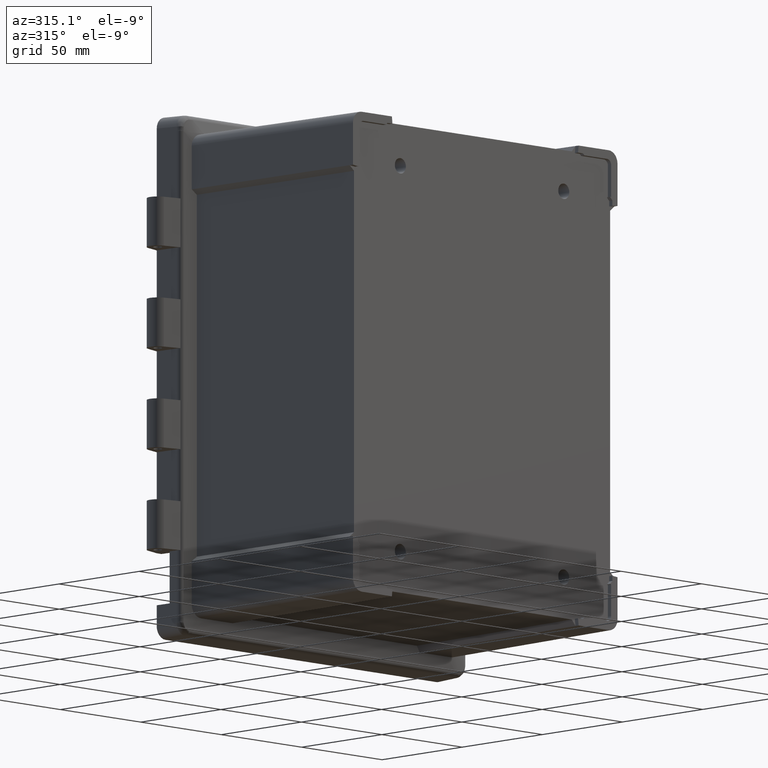
[diagram: clean part render]
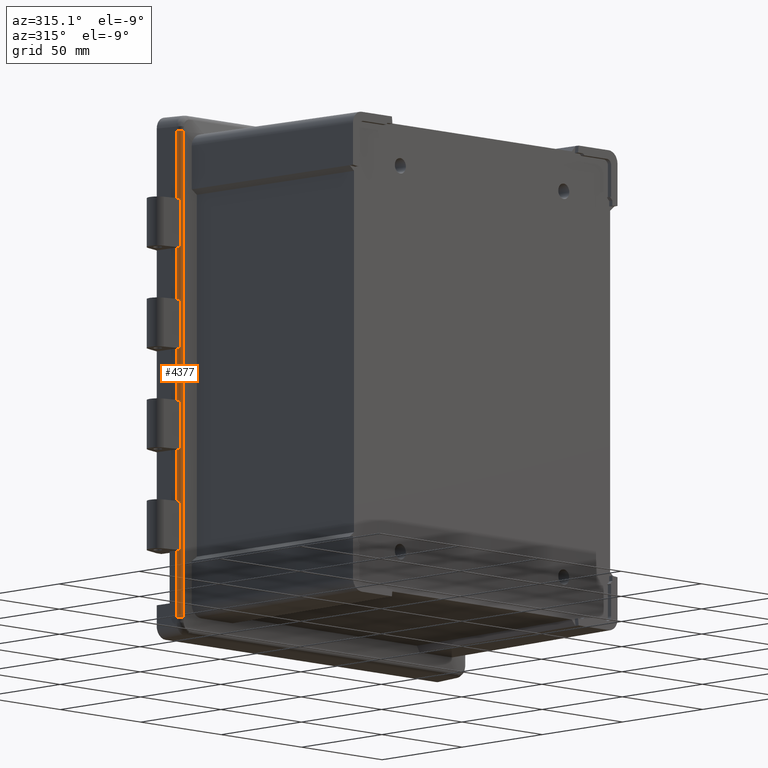
[diagram: same view with one face highlighted and labeled with its STEP entity id]
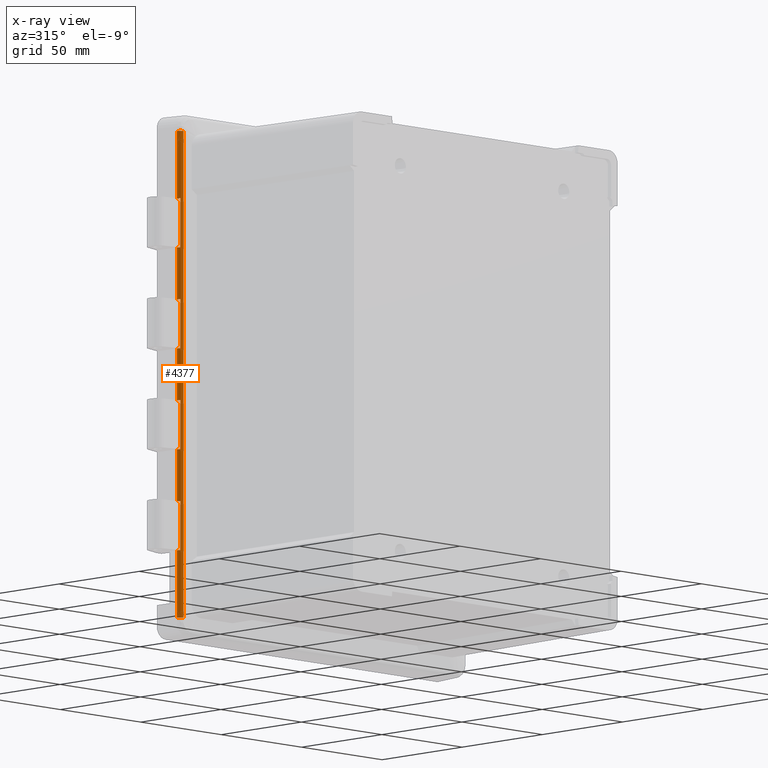
[diagram: x-ray of the same camera — body ghosted, the highlighted face saturated]
A machine part, auxiliary view. The second image highlights one B-rep face of the part: STEP entity #4377.
The next image is the same camera in x-ray: the body ghosted, the highlighted face saturated — about 0% of this face is hidden behind the body in this view.
In plain terms, the highlighted cylindrical surface (edge-blend (fillet) strip) has radius 2.5 mm, axis along (0, 0, -1).
Its self-contained STEP definition (entity closure, byte-faithful):
#23 = ORIENTED_EDGE ( 'NONE', *, *, #4641, .F. ) ;
#60 = CARTESIAN_POINT ( 'NONE',  ( -88.51205351544631100, -13.71086595240216300, -56.59999999999998000 ) ) ;
#186 = AXIS2_PLACEMENT_3D ( 'NONE', #8789, #15572, #783 ) ;
#410 = VECTOR ( 'NONE', #6928, 1000.000000000000000 ) ;
#447 = ORIENTED_EDGE ( 'NONE', *, *, #12240, .F. ) ;
#473 = CARTESIAN_POINT ( 'NONE',  ( -88.51205351544631100, -13.71086595240216300, 115.9071434627127800 ) ) ;
#592 = CARTESIAN_POINT ( 'NONE',  ( -88.51205351544631100, -13.71086595240216300, -33.39999999999998400 ) ) ;
#685 = CARTESIAN_POINT ( 'NONE',  ( -86.72683258303006000, -11.96072703721204200, -33.40000000000001300 ) ) ;
#754 = VECTOR ( 'NONE', #12533, 1000.000000000000000 ) ;
#762 = ORIENTED_EDGE ( 'NONE', *, *, #3729, .F. ) ;
#783 = DIRECTION ( 'NONE',  ( -1.000000000000000000, 0.0000000000000000000, 0.0000000000000000000 ) ) ;
#913 = DIRECTION ( 'NONE',  ( 0.0000000000000000000, 0.0000000000000000000, 1.000000000000000000 ) ) ;
#990 = DIRECTION ( 'NONE',  ( 1.000000000000000000, 0.0000000000000000000, 0.0000000000000000000 ) ) ;
#995 = CYLINDRICAL_SURFACE ( 'NONE', #6089, 2.500000000000002200 ) ;
#1063 = AXIS2_PLACEMENT_3D ( 'NONE', #5134, #13110, #990 ) ;
#1221 = CARTESIAN_POINT ( 'NONE',  ( -87.24661181007446900, -14.40609603904655200, -108.4869520034038700 ) ) ;
#1378 = CIRCLE ( 'NONE', #10074, 2.500000000000002200 ) ;
#1380 = EDGE_CURVE ( 'NONE', #2255, #8680, #9791, .T. ) ;
#1387 = DIRECTION ( 'NONE',  ( 0.0000000000000000000, 0.0000000000000000000, 1.000000000000000000 ) ) ;
#1432 = LINE ( 'NONE', #5155, #16030 ) ;
#1901 = EDGE_CURVE ( 'NONE', #12692, #2255, #17379, .T. ) ;
#1999 = AXIS2_PLACEMENT_3D ( 'NONE', #5691, #9958, #4479 ) ;
#2044 = VECTOR ( 'NONE', #13022, 1000.000000000000000 ) ;
#2075 = ORIENTED_EDGE ( 'NONE', *, *, #4059, .T. ) ;
#2225 = CARTESIAN_POINT ( 'NONE',  ( -89.22530965057779900, -12.04797577896829400, -33.39999999999999900 ) ) ;
#2255 = VERTEX_POINT ( 'NONE', #11455 ) ;
#2323 = DIRECTION ( 'NONE',  ( 0.0000000000000000000, 0.0000000000000000000, 1.000000000000000000 ) ) ;
#2378 = CIRCLE ( 'NONE', #15553, 2.500000000000002200 ) ;
#2475 = LINE ( 'NONE', #4399, #10281 ) ;
#2488 = CARTESIAN_POINT ( 'NONE',  ( -89.22530965057779900, -12.04797577896829500, 11.60000000000000000 ) ) ;
#2548 = ORIENTED_EDGE ( 'NONE', *, *, #9465, .F. ) ;
#2620 = CARTESIAN_POINT ( 'NONE',  ( -89.22530965057779900, -12.04797577896829400, -56.59999999999999400 ) ) ;
#2676 = EDGE_LOOP ( 'NONE', ( #23, #8838, #16496, #11606, #6880, #2075, #10024, #447, #7588, #16683, #13264, #3673, #762, #10352, #11815, #6703, #2548, #16841, #8551, #17434 ) ) ;
#3195 = EDGE_CURVE ( 'NONE', #6162, #13288, #11205, .T. ) ;
#3198 = DIRECTION ( 'NONE',  ( -1.000000000000000000, 0.0000000000000000000, 0.0000000000000000000 ) ) ;
#3351 = CIRCLE ( 'NONE', #14916, 2.500000000000002200 ) ;
#3673 = ORIENTED_EDGE ( 'NONE', *, *, #16216, .F. ) ;
#3729 = EDGE_CURVE ( 'NONE', #6332, #10739, #1432, .T. ) ;
#3795 = DIRECTION ( 'NONE',  ( -1.000000000000000000, 0.0000000000000000000, 0.0000000000000000000 ) ) ;
#3908 = CARTESIAN_POINT ( 'NONE',  ( -89.22530965057779900, -12.04797577896829500, 108.4869520034038300 ) ) ;
#4059 = EDGE_CURVE ( 'NONE', #6162, #15570, #3351, .T. ) ;
#4194 = VERTEX_POINT ( 'NONE', #8321 ) ;
#4335 = DIRECTION ( 'NONE',  ( 0.0000000000000000000, 0.0000000000000000000, 1.000000000000000000 ) ) ;
#4377 = ADVANCED_FACE ( 'NONE', ( #11795 ), #995, .T. ) ;
#4399 = CARTESIAN_POINT ( 'NONE',  ( -89.22530965057779900, -12.04797577896829400, -116.3960342355972400 ) ) ;
#4479 = DIRECTION ( 'NONE',  ( -1.000000000000000000, 0.0000000000000000000, 0.0000000000000000000 ) ) ;
#4496 = CIRCLE ( 'NONE', #4952, 2.500000000000002200 ) ;
#4641 = EDGE_CURVE ( 'NONE', #16816, #8951, #11143, .T. ) ;
#4674 = VERTEX_POINT ( 'NONE', #13311 ) ;
#4780 = VECTOR ( 'NONE', #16381, 1000.000000000000000 ) ;
#4782 = EDGE_CURVE ( 'NONE', #12692, #17122, #2475, .T. ) ;
#4790 = DIRECTION ( 'NONE',  ( 0.0000000000000000000, 0.0000000000000000000, 1.000000000000000000 ) ) ;
#4952 = AXIS2_PLACEMENT_3D ( 'NONE', #8105, #6611, #13524 ) ;
#5134 = CARTESIAN_POINT ( 'NONE',  ( -86.72683258303006000, -11.96072703721204200, 108.4869520034038300 ) ) ;
#5155 = CARTESIAN_POINT ( 'NONE',  ( -89.22530965057779900, -12.04797577896829400, -116.3960342355972400 ) ) ;
#5630 = VECTOR ( 'NONE', #7090, 1000.000000000000000 ) ;
#5691 = CARTESIAN_POINT ( 'NONE',  ( -86.72683258303006000, -11.96072703721204200, 78.39999999999999100 ) ) ;
#5773 = EDGE_CURVE ( 'NONE', #15570, #6205, #12783, .T. ) ;
#5805 = DIRECTION ( 'NONE',  ( -1.000000000000000000, 0.0000000000000000000, 0.0000000000000000000 ) ) ;
#6089 = AXIS2_PLACEMENT_3D ( 'NONE', #16884, #14385, #7598 ) ;
#6162 = VERTEX_POINT ( 'NONE', #10236 ) ;
#6205 = VERTEX_POINT ( 'NONE', #14423 ) ;
#6332 = VERTEX_POINT ( 'NONE', #2620 ) ;
#6529 = CARTESIAN_POINT ( 'NONE',  ( -86.72683258303006000, -11.96072703721204200, 56.59999999999999400 ) ) ;
#6598 = DIRECTION ( 'NONE',  ( 0.0000000000000000000, 0.0000000000000000000, -1.000000000000000000 ) ) ;
#6611 = DIRECTION ( 'NONE',  ( 0.0000000000000000000, 0.0000000000000000000, 1.000000000000000000 ) ) ;
#6703 = ORIENTED_EDGE ( 'NONE', *, *, #7124, .F. ) ;
#6880 = ORIENTED_EDGE ( 'NONE', *, *, #3195, .F. ) ;
#6928 = DIRECTION ( 'NONE',  ( 0.0000000000000000000, 0.0000000000000000000, 1.000000000000000000 ) ) ;
#7015 = VERTEX_POINT ( 'NONE', #16525 ) ;
#7090 = DIRECTION ( 'NONE',  ( -0.0000000000000000000, -0.0000000000000000000, -1.000000000000000000 ) ) ;
#7124 = EDGE_CURVE ( 'NONE', #7015, #8683, #14802, .T. ) ;
#7448 = CIRCLE ( 'NONE', #1999, 2.500000000000002200 ) ;
#7588 = ORIENTED_EDGE ( 'NONE', *, *, #4782, .F. ) ;
#7598 = DIRECTION ( 'NONE',  ( -1.000000000000000000, 0.0000000000000000000, 0.0000000000000000000 ) ) ;
#7861 = AXIS2_PLACEMENT_3D ( 'NONE', #13591, #10814, #9467 ) ;
#7955 = LINE ( 'NONE', #12358, #4780 ) ;
#8105 = CARTESIAN_POINT ( 'NONE',  ( -86.72683258303006000, -11.96072703721204200, -108.4869520034038700 ) ) ;
#8125 = AXIS2_PLACEMENT_3D ( 'NONE', #685, #4790, #3795 ) ;
#8321 = CARTESIAN_POINT ( 'NONE',  ( -88.51205351544631100, -13.71086595240216300, 56.59999999999998700 ) ) ;
#8551 = ORIENTED_EDGE ( 'NONE', *, *, #9417, .F. ) ;
#8680 = VERTEX_POINT ( 'NONE', #592 ) ;
#8683 = VERTEX_POINT ( 'NONE', #16858 ) ;
#8789 = CARTESIAN_POINT ( 'NONE',  ( -86.72683258303006000, -11.96072703721204200, -78.39999999999999100 ) ) ;
#8838 = ORIENTED_EDGE ( 'NONE', *, *, #16538, .T. ) ;
#8951 = VERTEX_POINT ( 'NONE', #3908 ) ;
#9099 = DIRECTION ( 'NONE',  ( -1.000000000000000000, 0.0000000000000000000, 0.0000000000000000000 ) ) ;
#9102 = DIRECTION ( 'NONE',  ( 0.0000000000000000000, 0.0000000000000000000, -1.000000000000000000 ) ) ;
#9417 = EDGE_CURVE ( 'NONE', #4674, #9817, #14087, .T. ) ;
#9465 = EDGE_CURVE ( 'NONE', #10454, #7015, #7955, .T. ) ;
#9467 = DIRECTION ( 'NONE',  ( -1.000000000000000000, 0.0000000000000000000, 0.0000000000000000000 ) ) ;
#9533 = CARTESIAN_POINT ( 'NONE',  ( -89.22530965057779900, -12.04797577896829400, 78.39999999999999100 ) ) ;
#9777 = AXIS2_PLACEMENT_3D ( 'NONE', #6529, #1387, #17417 ) ;
#9791 = LINE ( 'NONE', #10032, #15284 ) ;
#9817 = VERTEX_POINT ( 'NONE', #1221 ) ;
#9958 = DIRECTION ( 'NONE',  ( 0.0000000000000000000, 0.0000000000000000000, 1.000000000000000000 ) ) ;
#10024 = ORIENTED_EDGE ( 'NONE', *, *, #5773, .T. ) ;
#10030 = EDGE_CURVE ( 'NONE', #6332, #14278, #1378, .T. ) ;
#10032 = CARTESIAN_POINT ( 'NONE',  ( -88.51205351544631100, -13.71086595240216300, 115.9071434627127800 ) ) ;
#10074 = AXIS2_PLACEMENT_3D ( 'NONE', #13909, #14015, #5805 ) ;
#10088 = VERTEX_POINT ( 'NONE', #11369 ) ;
#10236 = CARTESIAN_POINT ( 'NONE',  ( -89.22530965057779900, -12.04797577896829500, 33.39999999999999900 ) ) ;
#10281 = VECTOR ( 'NONE', #4335, 1000.000000000000000 ) ;
#10352 = ORIENTED_EDGE ( 'NONE', *, *, #10030, .T. ) ;
#10454 = VERTEX_POINT ( 'NONE', #15059 ) ;
#10532 = CARTESIAN_POINT ( 'NONE',  ( -89.22530965057779900, -12.04797577896829400, -116.3960342355972400 ) ) ;
#10739 = VERTEX_POINT ( 'NONE', #2225 ) ;
#10814 = DIRECTION ( 'NONE',  ( 0.0000000000000000000, 0.0000000000000000000, 1.000000000000000000 ) ) ;
#10920 = CIRCLE ( 'NONE', #1063, 2.500000000000002200 ) ;
#11060 = CIRCLE ( 'NONE', #8125, 2.500000000000002200 ) ;
#11143 = LINE ( 'NONE', #10532, #2044 ) ;
#11205 = LINE ( 'NONE', #12370, #410 ) ;
#11369 = CARTESIAN_POINT ( 'NONE',  ( -88.51205351544631100, -13.71086595240216300, 78.39999999999999100 ) ) ;
#11455 = CARTESIAN_POINT ( 'NONE',  ( -88.51205351544631100, -13.71086595240216300, -11.60000000000000000 ) ) ;
#11606 = ORIENTED_EDGE ( 'NONE', *, *, #12328, .F. ) ;
#11658 = CARTESIAN_POINT ( 'NONE',  ( -88.51205351544631100, -13.71086595240216100, 33.39999999999999900 ) ) ;
#11697 = LINE ( 'NONE', #13397, #12326 ) ;
#11795 = FACE_OUTER_BOUND ( 'NONE', #2676, .T. ) ;
#11815 = ORIENTED_EDGE ( 'NONE', *, *, #14436, .T. ) ;
#12240 = EDGE_CURVE ( 'NONE', #17122, #6205, #2378, .T. ) ;
#12326 = VECTOR ( 'NONE', #6598, 1000.000000000000000 ) ;
#12328 = EDGE_CURVE ( 'NONE', #13288, #4194, #12741, .T. ) ;
#12358 = CARTESIAN_POINT ( 'NONE',  ( -89.22530965057779900, -12.04797577896829400, -116.3960342355972400 ) ) ;
#12370 = CARTESIAN_POINT ( 'NONE',  ( -89.22530965057779900, -12.04797577896829400, -116.3960342355972400 ) ) ;
#12479 = CARTESIAN_POINT ( 'NONE',  ( -87.24661181007445500, -14.40609603904655800, 115.9071434627127800 ) ) ;
#12533 = DIRECTION ( 'NONE',  ( 0.0000000000000000000, 0.0000000000000000000, -1.000000000000000000 ) ) ;
#12692 = VERTEX_POINT ( 'NONE', #14245 ) ;
#12741 = CIRCLE ( 'NONE', #9777, 2.500000000000002200 ) ;
#12783 = LINE ( 'NONE', #17248, #16390 ) ;
#12995 = CARTESIAN_POINT ( 'NONE',  ( -89.22530965057779900, -12.04797577896829400, 56.59999999999998000 ) ) ;
#13022 = DIRECTION ( 'NONE',  ( 0.0000000000000000000, 0.0000000000000000000, 1.000000000000000000 ) ) ;
#13040 = CARTESIAN_POINT ( 'NONE',  ( -86.72683258303006000, -11.96072703721204200, 11.60000000000000000 ) ) ;
#13110 = DIRECTION ( 'NONE',  ( 0.0000000000000000000, 0.0000000000000000000, 1.000000000000000000 ) ) ;
#13264 = ORIENTED_EDGE ( 'NONE', *, *, #1380, .T. ) ;
#13288 = VERTEX_POINT ( 'NONE', #12995 ) ;
#13311 = CARTESIAN_POINT ( 'NONE',  ( -87.24661181007445500, -14.40609603904656000, 108.4869520034038300 ) ) ;
#13397 = CARTESIAN_POINT ( 'NONE',  ( -88.51205351544631100, -13.71086595240216300, 115.9071434627127800 ) ) ;
#13524 = DIRECTION ( 'NONE',  ( 1.000000000000000000, 0.0000000000000000000, 0.0000000000000000000 ) ) ;
#13591 = CARTESIAN_POINT ( 'NONE',  ( -86.72683258303006000, -11.96072703721204200, -11.60000000000000000 ) ) ;
#13909 = CARTESIAN_POINT ( 'NONE',  ( -86.72683258303006000, -11.96072703721204200, -56.60000000000000900 ) ) ;
#14015 = DIRECTION ( 'NONE',  ( 0.0000000000000000000, 0.0000000000000000000, 1.000000000000000000 ) ) ;
#14057 = CARTESIAN_POINT ( 'NONE',  ( -86.72683258303006000, -11.96072703721204200, 33.39999999999999900 ) ) ;
#14087 = LINE ( 'NONE', #12479, #5630 ) ;
#14205 = DIRECTION ( 'NONE',  ( 0.0000000000000000000, 0.0000000000000000000, -1.000000000000000000 ) ) ;
#14245 = CARTESIAN_POINT ( 'NONE',  ( -89.22530965057779900, -12.04797577896829400, -11.60000000000000000 ) ) ;
#14278 = VERTEX_POINT ( 'NONE', #60 ) ;
#14285 = LINE ( 'NONE', #473, #754 ) ;
#14385 = DIRECTION ( 'NONE',  ( 0.0000000000000000000, 0.0000000000000000000, -1.000000000000000000 ) ) ;
#14423 = CARTESIAN_POINT ( 'NONE',  ( -88.51205351544631100, -13.71086595240216300, 11.59999999999998500 ) ) ;
#14436 = EDGE_CURVE ( 'NONE', #14278, #8683, #14285, .T. ) ;
#14649 = EDGE_CURVE ( 'NONE', #8951, #4674, #10920, .T. ) ;
#14802 = CIRCLE ( 'NONE', #186, 2.500000000000002200 ) ;
#14916 = AXIS2_PLACEMENT_3D ( 'NONE', #14057, #15376, #3198 ) ;
#15059 = CARTESIAN_POINT ( 'NONE',  ( -89.22530965057779900, -12.04797577896829500, -108.4869520034038700 ) ) ;
#15284 = VECTOR ( 'NONE', #14205, 1000.000000000000000 ) ;
#15376 = DIRECTION ( 'NONE',  ( 0.0000000000000000000, 0.0000000000000000000, 1.000000000000000000 ) ) ;
#15553 = AXIS2_PLACEMENT_3D ( 'NONE', #13040, #913, #9099 ) ;
#15570 = VERTEX_POINT ( 'NONE', #11658 ) ;
#15572 = DIRECTION ( 'NONE',  ( 0.0000000000000000000, 0.0000000000000000000, 1.000000000000000000 ) ) ;
#16030 = VECTOR ( 'NONE', #2323, 1000.000000000000000 ) ;
#16216 = EDGE_CURVE ( 'NONE', #10739, #8680, #11060, .T. ) ;
#16381 = DIRECTION ( 'NONE',  ( 0.0000000000000000000, 0.0000000000000000000, 1.000000000000000000 ) ) ;
#16390 = VECTOR ( 'NONE', #9102, 1000.000000000000000 ) ;
#16435 = EDGE_CURVE ( 'NONE', #10088, #4194, #11697, .T. ) ;
#16496 = ORIENTED_EDGE ( 'NONE', *, *, #16435, .T. ) ;
#16525 = CARTESIAN_POINT ( 'NONE',  ( -89.22530965057779900, -12.04797577896829400, -78.39999999999999100 ) ) ;
#16538 = EDGE_CURVE ( 'NONE', #16816, #10088, #7448, .T. ) ;
#16683 = ORIENTED_EDGE ( 'NONE', *, *, #1901, .T. ) ;
#16816 = VERTEX_POINT ( 'NONE', #9533 ) ;
#16841 = ORIENTED_EDGE ( 'NONE', *, *, #17314, .T. ) ;
#16858 = CARTESIAN_POINT ( 'NONE',  ( -88.51205351544631100, -13.71086595240216300, -78.40000000000002000 ) ) ;
#16884 = CARTESIAN_POINT ( 'NONE',  ( -86.72683258303006000, -11.96072703721204200, 115.9071434627127800 ) ) ;
#17122 = VERTEX_POINT ( 'NONE', #2488 ) ;
#17248 = CARTESIAN_POINT ( 'NONE',  ( -88.51205351544631100, -13.71086595240216300, 115.9071434627127800 ) ) ;
#17314 = EDGE_CURVE ( 'NONE', #10454, #9817, #4496, .T. ) ;
#17379 = CIRCLE ( 'NONE', #7861, 2.500000000000002200 ) ;
#17417 = DIRECTION ( 'NONE',  ( -1.000000000000000000, 0.0000000000000000000, 0.0000000000000000000 ) ) ;
#17434 = ORIENTED_EDGE ( 'NONE', *, *, #14649, .F. ) ;